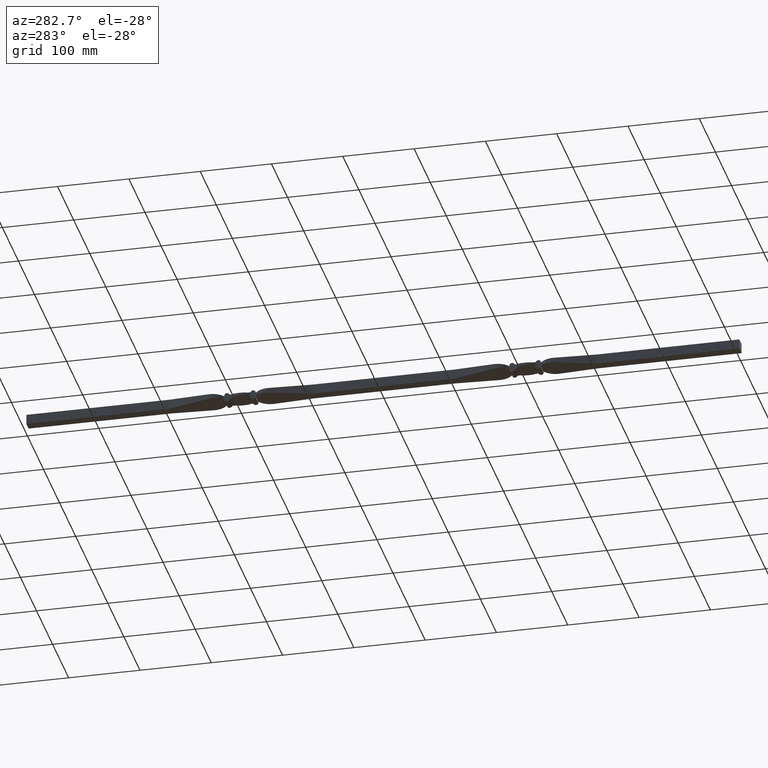
[diagram: clean part render]
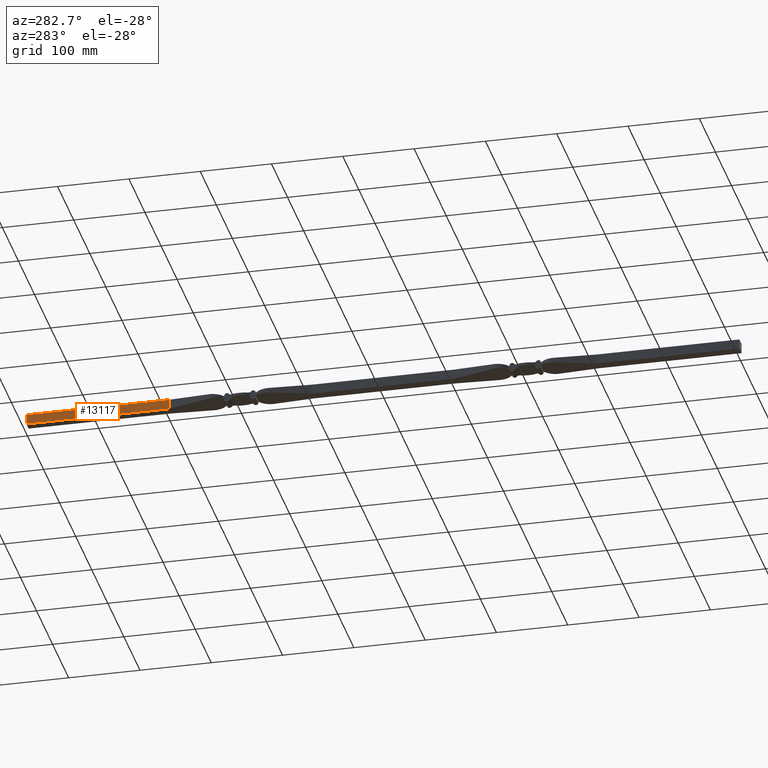
[diagram: same view with one face highlighted and labeled with its STEP entity id]
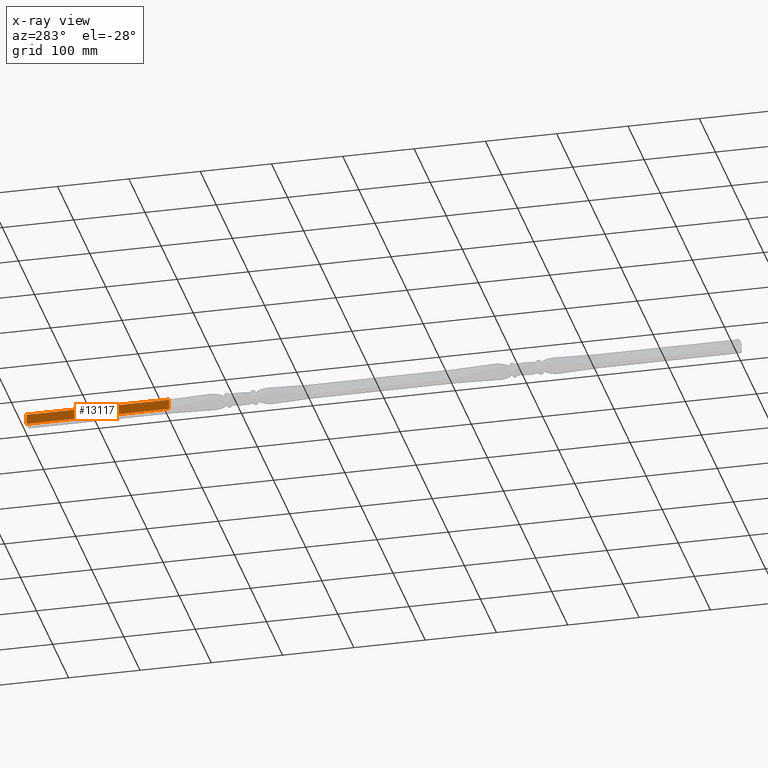
[diagram: x-ray of the same camera — body ghosted, the highlighted face saturated]
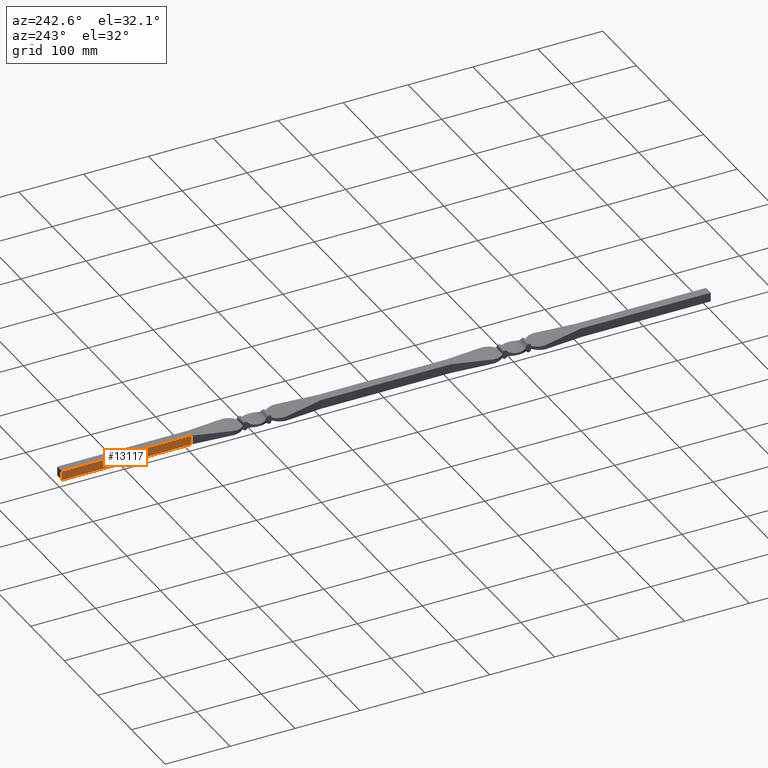
[diagram: same view with one face highlighted and labeled with its STEP entity id]
A machine part, auxiliary view. The second image highlights one B-rep face of the part: STEP entity #13117.
The next image is the same camera in x-ray: the body ghosted, the highlighted face saturated — about 0% of this face is hidden behind the body in this view.
A second angle (auxiliary view) of the same face is appended — the face is thin or edge-on in the first view.
In plain terms, the highlighted planar face has unit normal (1, 0, -0).
Its self-contained STEP definition (entity closure, byte-faithful):
#133 = VECTOR ( 'NONE', #7381, 1000.000000000000000 ) ;
#335 = CARTESIAN_POINT ( 'NONE',  ( -7.000000000000000888, 300.0000000000000000, 7.000000000000000000 ) ) ;
#361 = VECTOR ( 'NONE', #9998, 1000.000000000000000 ) ;
#600 = CARTESIAN_POINT ( 'NONE',  ( -7.000000000000002665, 100.0000000000000000, -7.000000000000000000 ) ) ;
#1017 = DIRECTION ( 'NONE',  ( -1.239088197126290817E-16, 0.000000000000000000, -1.000000000000000000 ) ) ;
#1772 = EDGE_CURVE ( 'NONE', #7971, #5929, #8725, .T. ) ;
#1914 = ORIENTED_EDGE ( 'NONE', *, *, #2523, .T. ) ;
#1979 = VECTOR ( 'NONE', #6304, 1000.000000000000000 ) ;
#2225 = EDGE_LOOP ( 'NONE', ( #10658, #5082, #1914, #5670 ) ) ;
#2523 = EDGE_CURVE ( 'NONE', #12057, #8917, #10053, .T. ) ;
#3178 = EDGE_CURVE ( 'NONE', #7971, #12057, #4822, .T. ) ;
#3407 = CARTESIAN_POINT ( 'NONE',  ( -7.000000000000000888, 100.0000000000000000, 7.000000000000000000 ) ) ;
#4259 = CARTESIAN_POINT ( 'NONE',  ( -7.000000000000002665, 619.7989898732232632, -7.000000000000000000 ) ) ;
#4305 = CARTESIAN_POINT ( 'NONE',  ( -7.000000000000002665, 300.0000000000000000, -7.000000000000000000 ) ) ;
#4822 = LINE ( 'NONE', #6223, #133 ) ;
#5082 = ORIENTED_EDGE ( 'NONE', *, *, #3178, .T. ) ;
#5670 = ORIENTED_EDGE ( 'NONE', *, *, #11435, .F. ) ;
#5816 = CARTESIAN_POINT ( 'NONE',  ( -7.000000000000002665, 300.0000000000000000, -7.000000000000000000 ) ) ;
#5929 = VERTEX_POINT ( 'NONE', #335 ) ;
#6027 = CARTESIAN_POINT ( 'NONE',  ( -7.000000000000002665, 100.0000000000000000, -7.000000000000000000 ) ) ;
#6223 = CARTESIAN_POINT ( 'NONE',  ( -7.000000000000002665, 619.7989898732232632, -7.000000000000000000 ) ) ;
#6264 = FACE_OUTER_BOUND ( 'NONE', #2225, .T. ) ;
#6304 = DIRECTION ( 'NONE',  ( -0.000000000000000000, -1.000000000000000000, -0.000000000000000000 ) ) ;
#7036 = VECTOR ( 'NONE', #13559, 1000.000000000000000 ) ;
#7381 = DIRECTION ( 'NONE',  ( -0.000000000000000000, -1.000000000000000000, -0.000000000000000000 ) ) ;
#7667 = LINE ( 'NONE', #13726, #1979 ) ;
#7971 = VERTEX_POINT ( 'NONE', #4305 ) ;
#8725 = LINE ( 'NONE', #5816, #361 ) ;
#8917 = VERTEX_POINT ( 'NONE', #3407 ) ;
#9998 = DIRECTION ( 'NONE',  ( 1.239088197126290817E-16, -0.000000000000000000, 1.000000000000000000 ) ) ;
#10053 = LINE ( 'NONE', #6027, #7036 ) ;
#10658 = ORIENTED_EDGE ( 'NONE', *, *, #1772, .F. ) ;
#11435 = EDGE_CURVE ( 'NONE', #5929, #8917, #7667, .T. ) ;
#11748 = DIRECTION ( 'NONE',  ( 1.000000000000000000, 0.000000000000000000, -1.239088197126290817E-16 ) ) ;
#12057 = VERTEX_POINT ( 'NONE', #600 ) ;
#12827 = PLANE ( 'NONE',  #13233 ) ;
#13117 = ADVANCED_FACE ( 'NONE', ( #6264 ), #12827, .F. ) ;
#13233 = AXIS2_PLACEMENT_3D ( 'NONE', #4259, #11748, #1017 ) ;
#13559 = DIRECTION ( 'NONE',  ( 1.239088197126290817E-16, 0.000000000000000000, 1.000000000000000000 ) ) ;
#13726 = CARTESIAN_POINT ( 'NONE',  ( -7.000000000000000888, 619.7989898732232632, 7.000000000000000000 ) ) ;